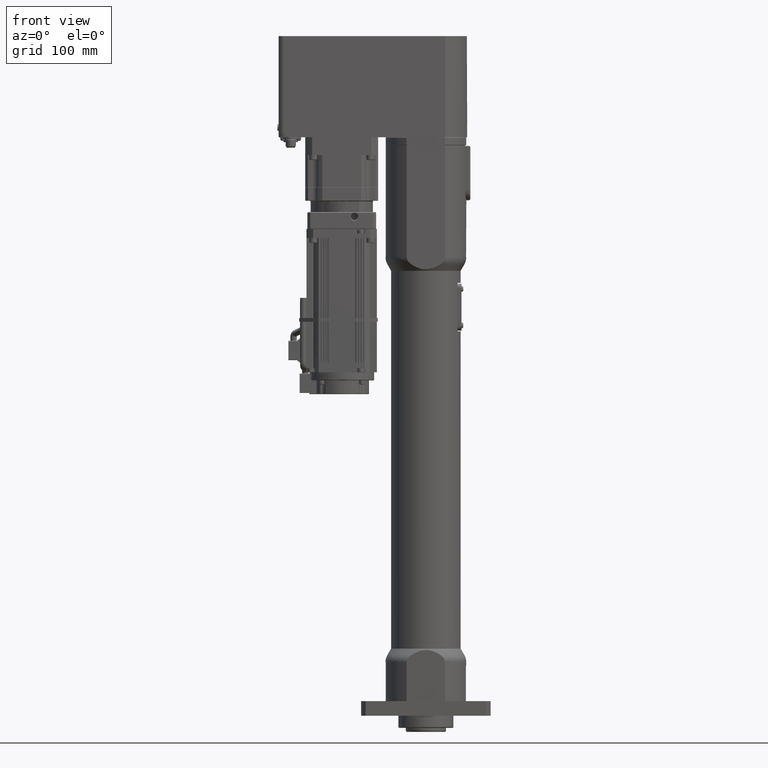
[diagram: clean part render]
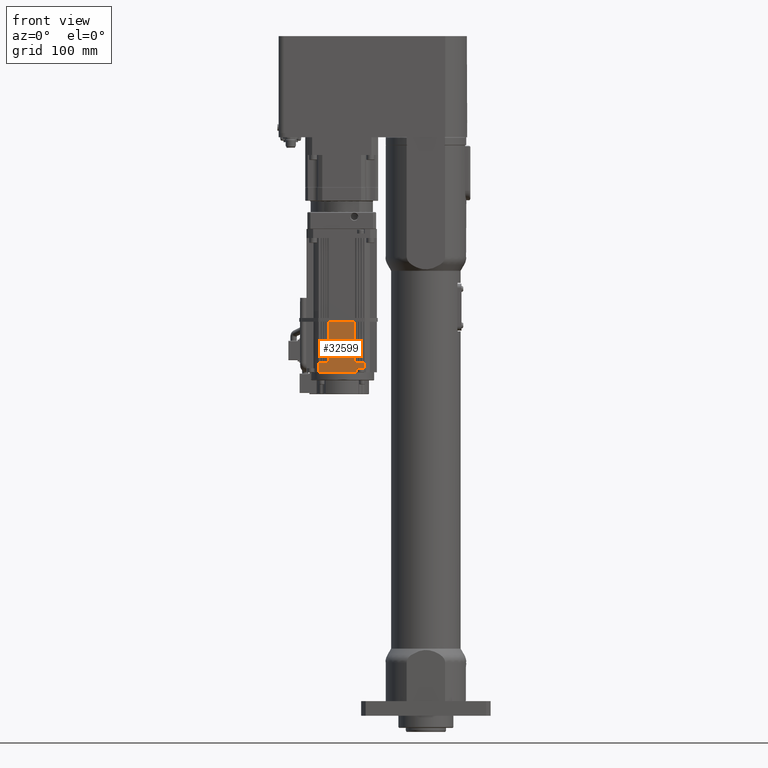
[diagram: same view with one face highlighted and labeled with its STEP entity id]
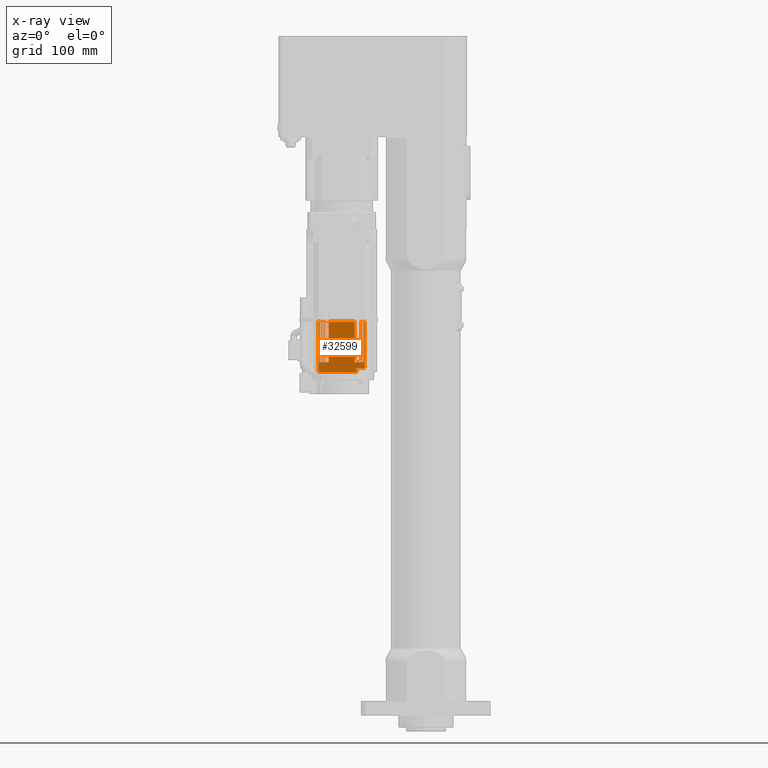
[diagram: x-ray of the same camera — body ghosted, the highlighted face saturated]
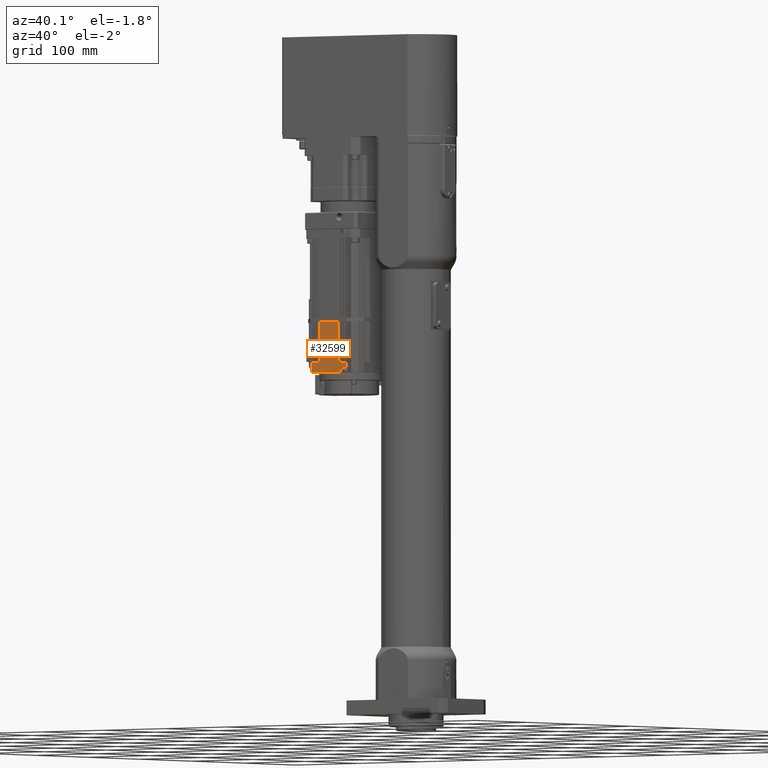
[diagram: same view with one face highlighted and labeled with its STEP entity id]
A machine part, front view. The second image highlights one B-rep face of the part: STEP entity #32599.
The next image is the same camera in x-ray: the body ghosted, the highlighted face saturated — about 0% of this face is hidden behind the body in this view.
A second angle (auxiliary view) of the same face is appended — the face is thin or edge-on in the first view.
In plain terms, the highlighted planar face has unit normal (-0, -1, 0).
Its self-contained STEP definition (entity closure, byte-faithful):
#747=PLANE('',#34666);
#2217=FACE_OUTER_BOUND('',#4040,.T.);
#4040=EDGE_LOOP('',(#21995,#21996,#21997,#21998,#21999,#22000,#22001,#22002,
#22003,#22004,#22005,#22006,#22007,#22008,#22009,#22010,#22011,#22012,#22013,
#22014,#22015,#22016,#22017,#22018,#22019,#22020,#22021,#22022,#22023,#22024,
#22025,#22026,#22027,#22028,#22029,#22030,#22031,#22032));
#7807=LINE('',#49138,#10503);
#7808=LINE('',#49139,#10504);
#7809=LINE('',#49140,#10505);
#7810=LINE('',#49141,#10506);
#7811=LINE('',#49142,#10507);
#7812=LINE('',#49143,#10508);
#7813=LINE('',#49144,#10509);
#7814=LINE('',#49145,#10510);
#7815=LINE('',#49147,#10511);
#7997=LINE('',#49474,#10693);
#7998=LINE('',#49477,#10694);
#7999=LINE('',#49479,#10695);
#8000=LINE('',#49480,#10696);
#8001=LINE('',#49482,#10697);
#8002=LINE('',#49484,#10698);
#8003=LINE('',#49486,#10699);
#8004=LINE('',#49487,#10700);
#8005=LINE('',#49489,#10701);
#8006=LINE('',#49491,#10702);
#8007=LINE('',#49492,#10703);
#8008=LINE('',#49494,#10704);
#8009=LINE('',#49496,#10705);
#8010=LINE('',#49497,#10706);
#8011=LINE('',#49499,#10707);
#8012=LINE('',#49501,#10708);
#8013=LINE('',#49502,#10709);
#8014=LINE('',#49504,#10710);
#8015=LINE('',#49506,#10711);
#8016=LINE('',#49507,#10712);
#8017=LINE('',#49509,#10713);
#8018=LINE('',#49511,#10714);
#8019=LINE('',#49512,#10715);
#8020=LINE('',#49514,#10716);
#8021=LINE('',#49516,#10717);
#8022=LINE('',#49517,#10718);
#8023=LINE('',#49519,#10719);
#8024=LINE('',#49521,#10720);
#8025=LINE('',#49522,#10721);
#10503=VECTOR('',#38853,10.);
#10504=VECTOR('',#38854,10.);
#10505=VECTOR('',#38855,10.);
#10506=VECTOR('',#38856,10.);
#10507=VECTOR('',#38857,10.);
#10508=VECTOR('',#38858,10.);
#10509=VECTOR('',#38859,10.);
#10510=VECTOR('',#38860,10.);
#10511=VECTOR('',#38861,10.);
#10693=VECTOR('',#39071,10.);
#10694=VECTOR('',#39074,10.);
#10695=VECTOR('',#39075,10.);
#10696=VECTOR('',#39076,10.);
#10697=VECTOR('',#39077,10.);
#10698=VECTOR('',#39078,10.);
#10699=VECTOR('',#39079,10.);
#10700=VECTOR('',#39080,10.);
#10701=VECTOR('',#39081,10.);
#10702=VECTOR('',#39082,10.);
#10703=VECTOR('',#39083,10.);
#10704=VECTOR('',#39084,10.);
#10705=VECTOR('',#39085,10.);
#10706=VECTOR('',#39086,10.);
#10707=VECTOR('',#39087,10.);
#10708=VECTOR('',#39088,10.);
#10709=VECTOR('',#39089,10.);
#10710=VECTOR('',#39090,10.);
#10711=VECTOR('',#39091,10.);
#10712=VECTOR('',#39092,10.);
#10713=VECTOR('',#39093,10.);
#10714=VECTOR('',#39094,10.);
#10715=VECTOR('',#39095,10.);
#10716=VECTOR('',#39096,10.);
#10717=VECTOR('',#39097,10.);
#10718=VECTOR('',#39098,10.);
#10719=VECTOR('',#39099,10.);
#10720=VECTOR('',#39100,10.);
#10721=VECTOR('',#39101,10.);
#13270=VERTEX_POINT('',#48970);
#13271=VERTEX_POINT('',#48972);
#13272=VERTEX_POINT('',#48976);
#13273=VERTEX_POINT('',#48978);
#13274=VERTEX_POINT('',#48982);
#13275=VERTEX_POINT('',#48984);
#13276=VERTEX_POINT('',#48988);
#13277=VERTEX_POINT('',#48990);
#13278=VERTEX_POINT('',#48994);
#13279=VERTEX_POINT('',#48996);
#13280=VERTEX_POINT('',#49000);
#13281=VERTEX_POINT('',#49002);
#13282=VERTEX_POINT('',#49006);
#13283=VERTEX_POINT('',#49008);
#13284=VERTEX_POINT('',#49012);
#13285=VERTEX_POINT('',#49014);
#13317=VERTEX_POINT('',#49136);
#13318=VERTEX_POINT('',#49146);
#13431=VERTEX_POINT('',#49472);
#13432=VERTEX_POINT('',#49476);
#13433=VERTEX_POINT('',#49478);
#13434=VERTEX_POINT('',#49481);
#13435=VERTEX_POINT('',#49483);
#13436=VERTEX_POINT('',#49485);
#13437=VERTEX_POINT('',#49488);
#13438=VERTEX_POINT('',#49490);
#13439=VERTEX_POINT('',#49493);
#13440=VERTEX_POINT('',#49495);
#13441=VERTEX_POINT('',#49498);
#13442=VERTEX_POINT('',#49500);
#13443=VERTEX_POINT('',#49503);
#13444=VERTEX_POINT('',#49505);
#13445=VERTEX_POINT('',#49508);
#13446=VERTEX_POINT('',#49510);
#13447=VERTEX_POINT('',#49513);
#13448=VERTEX_POINT('',#49515);
#13449=VERTEX_POINT('',#49518);
#13450=VERTEX_POINT('',#49520);
#16562=EDGE_CURVE('',#13285,#13317,#7807,.T.);
#16563=EDGE_CURVE('',#13282,#13284,#7808,.T.);
#16564=EDGE_CURVE('',#13280,#13283,#7809,.T.);
#16565=EDGE_CURVE('',#13278,#13281,#7810,.T.);
#16566=EDGE_CURVE('',#13276,#13279,#7811,.T.);
#16567=EDGE_CURVE('',#13274,#13277,#7812,.T.);
#16568=EDGE_CURVE('',#13272,#13275,#7813,.T.);
#16569=EDGE_CURVE('',#13270,#13273,#7814,.T.);
#16570=EDGE_CURVE('',#13318,#13271,#7815,.T.);
#16759=EDGE_CURVE('',#13317,#13431,#7997,.T.);
#16760=EDGE_CURVE('',#13432,#13284,#7998,.T.);
#16761=EDGE_CURVE('',#13432,#13433,#7999,.T.);
#16762=EDGE_CURVE('',#13285,#13433,#8000,.T.);
#16763=EDGE_CURVE('',#13434,#13431,#8001,.T.);
#16764=EDGE_CURVE('',#13434,#13435,#8002,.T.);
#16765=EDGE_CURVE('',#13435,#13436,#8003,.T.);
#16766=EDGE_CURVE('',#13436,#13318,#8004,.T.);
#16767=EDGE_CURVE('',#13437,#13271,#8005,.T.);
#16768=EDGE_CURVE('',#13437,#13438,#8006,.T.);
#16769=EDGE_CURVE('',#13270,#13438,#8007,.T.);
#16770=EDGE_CURVE('',#13439,#13273,#8008,.T.);
#16771=EDGE_CURVE('',#13439,#13440,#8009,.T.);
#16772=EDGE_CURVE('',#13272,#13440,#8010,.T.);
#16773=EDGE_CURVE('',#13441,#13275,#8011,.T.);
#16774=EDGE_CURVE('',#13441,#13442,#8012,.T.);
#16775=EDGE_CURVE('',#13274,#13442,#8013,.T.);
#16776=EDGE_CURVE('',#13443,#13277,#8014,.T.);
#16777=EDGE_CURVE('',#13443,#13444,#8015,.T.);
#16778=EDGE_CURVE('',#13276,#13444,#8016,.T.);
#16779=EDGE_CURVE('',#13445,#13279,#8017,.T.);
#16780=EDGE_CURVE('',#13445,#13446,#8018,.T.);
#16781=EDGE_CURVE('',#13278,#13446,#8019,.T.);
#16782=EDGE_CURVE('',#13447,#13281,#8020,.T.);
#16783=EDGE_CURVE('',#13447,#13448,#8021,.T.);
#16784=EDGE_CURVE('',#13280,#13448,#8022,.T.);
#16785=EDGE_CURVE('',#13449,#13283,#8023,.T.);
#16786=EDGE_CURVE('',#13449,#13450,#8024,.T.);
#16787=EDGE_CURVE('',#13282,#13450,#8025,.T.);
#21995=ORIENTED_EDGE('',*,*,#16563,.T.);
#21996=ORIENTED_EDGE('',*,*,#16760,.F.);
#21997=ORIENTED_EDGE('',*,*,#16761,.T.);
#21998=ORIENTED_EDGE('',*,*,#16762,.F.);
#21999=ORIENTED_EDGE('',*,*,#16562,.T.);
#22000=ORIENTED_EDGE('',*,*,#16759,.T.);
#22001=ORIENTED_EDGE('',*,*,#16763,.F.);
#22002=ORIENTED_EDGE('',*,*,#16764,.T.);
#22003=ORIENTED_EDGE('',*,*,#16765,.T.);
#22004=ORIENTED_EDGE('',*,*,#16766,.T.);
#22005=ORIENTED_EDGE('',*,*,#16570,.T.);
#22006=ORIENTED_EDGE('',*,*,#16767,.F.);
#22007=ORIENTED_EDGE('',*,*,#16768,.T.);
#22008=ORIENTED_EDGE('',*,*,#16769,.F.);
#22009=ORIENTED_EDGE('',*,*,#16569,.T.);
#22010=ORIENTED_EDGE('',*,*,#16770,.F.);
#22011=ORIENTED_EDGE('',*,*,#16771,.T.);
#22012=ORIENTED_EDGE('',*,*,#16772,.F.);
#22013=ORIENTED_EDGE('',*,*,#16568,.T.);
#22014=ORIENTED_EDGE('',*,*,#16773,.F.);
#22015=ORIENTED_EDGE('',*,*,#16774,.T.);
#22016=ORIENTED_EDGE('',*,*,#16775,.F.);
#22017=ORIENTED_EDGE('',*,*,#16567,.T.);
#22018=ORIENTED_EDGE('',*,*,#16776,.F.);
#22019=ORIENTED_EDGE('',*,*,#16777,.T.);
#22020=ORIENTED_EDGE('',*,*,#16778,.F.);
#22021=ORIENTED_EDGE('',*,*,#16566,.T.);
#22022=ORIENTED_EDGE('',*,*,#16779,.F.);
#22023=ORIENTED_EDGE('',*,*,#16780,.T.);
#22024=ORIENTED_EDGE('',*,*,#16781,.F.);
#22025=ORIENTED_EDGE('',*,*,#16565,.T.);
#22026=ORIENTED_EDGE('',*,*,#16782,.F.);
#22027=ORIENTED_EDGE('',*,*,#16783,.T.);
#22028=ORIENTED_EDGE('',*,*,#16784,.F.);
#22029=ORIENTED_EDGE('',*,*,#16564,.T.);
#22030=ORIENTED_EDGE('',*,*,#16785,.F.);
#22031=ORIENTED_EDGE('',*,*,#16786,.T.);
#22032=ORIENTED_EDGE('',*,*,#16787,.F.);
#32599=ADVANCED_FACE('',(#2217),#747,.T.);
#34666=AXIS2_PLACEMENT_3D('',#49475,#39072,#39073);
#38853=DIRECTION('',(-1.,2.39794757605666E-14,5.4831952850511E-14));
#38854=DIRECTION('',(-1.,2.39794757605666E-14,5.4831952850511E-14));
#38855=DIRECTION('',(-1.,2.39794757605666E-14,5.4831952850511E-14));
#38856=DIRECTION('',(-1.,2.39794757605666E-14,5.4831952850511E-14));
#38857=DIRECTION('',(-1.,2.39794757605666E-14,5.4831952850511E-14));
#38858=DIRECTION('',(-1.,2.39794757605666E-14,5.4831952850511E-14));
#38859=DIRECTION('',(-1.,2.39794757605666E-14,5.4831952850511E-14));
#38860=DIRECTION('',(-1.,2.39794757605666E-14,5.4831952850511E-14));
#38861=DIRECTION('',(-1.,2.39794757605666E-14,5.4831952850511E-14));
#39071=DIRECTION('',(-5.48319528505112E-14,-1.00722983923794E-14,-1.));
#39072=DIRECTION('center_axis',(-2.39794757605661E-14,-1.,1.00722983923807E-14));
#39073=DIRECTION('ref_axis',(-1.,2.39794757605666E-14,5.4831952850511E-14));
#39074=DIRECTION('',(5.58543918212096E-14,1.00722983923794E-14,1.));
#39075=DIRECTION('',(-1.,2.39794757605666E-14,5.58543918212094E-14));
#39076=DIRECTION('',(-5.56813700511382E-14,-1.00722983923794E-14,-1.));
#39077=DIRECTION('',(-1.,2.39794757605666E-14,5.4831952850511E-14));
#39078=DIRECTION('',(5.48319528505112E-14,1.00722983923794E-14,1.));
#39079=DIRECTION('',(1.,-2.39794757605666E-14,-5.4831952850511E-14));
#39080=DIRECTION('',(5.48319528505112E-14,1.00722983923794E-14,1.));
#39081=DIRECTION('',(5.58111363786918E-14,1.00722983923794E-14,1.));
#39082=DIRECTION('',(-1.,2.39794757605666E-14,5.58543918212094E-14));
#39083=DIRECTION('',(-5.57967178978525E-14,-1.00722983923794E-14,-1.));
#39084=DIRECTION('',(5.58976472637275E-14,1.00722983923794E-14,1.));
#39085=DIRECTION('',(-1.,2.39794757605666E-14,5.58543918212094E-14));
#39086=DIRECTION('',(-5.5825554859531E-14,-1.00722983923794E-14,-1.));
#39087=DIRECTION('',(5.62581092847097E-14,1.00722983923794E-14,1.));
#39088=DIRECTION('',(-1.,2.39794757605666E-14,5.58543918212094E-14));
#39089=DIRECTION('',(-5.62292723230311E-14,-1.00722983923794E-14,-1.));
#39090=DIRECTION('',(5.61139244763168E-14,1.00722983923794E-14,1.));
#39091=DIRECTION('',(-1.,2.39794757605666E-14,5.58543918212094E-14));
#39092=DIRECTION('',(-5.59697396679239E-14,-1.00722983923794E-14,-1.));
#39093=DIRECTION('',(5.57967178978525E-14,1.00722983923794E-14,1.));
#39094=DIRECTION('',(-1.,2.39794757605666E-14,5.58543918212094E-14));
#39095=DIRECTION('',(-5.57390439744953E-14,-1.00722983923794E-14,-1.));
#39096=DIRECTION('',(5.53353265109953E-14,1.00722983923794E-14,1.));
#39097=DIRECTION('',(-1.,2.39794757605666E-14,5.58543918212094E-14));
#39098=DIRECTION('',(-5.53353265109953E-14,-1.00722983923794E-14,-1.));
#39099=DIRECTION('',(5.57967178978525E-14,1.00722983923794E-14,1.));
#39100=DIRECTION('',(-1.,2.39794757605666E-14,5.58543918212094E-14));
#39101=DIRECTION('',(-5.57967178978525E-14,-1.00722983923794E-14,-1.));
#48970=CARTESIAN_POINT('',(-79.0969330410399,-43.5000000000241,487.000000000003));
#48972=CARTESIAN_POINT('',(-76.3969330410399,-43.5000000000242,487.000000000003));
#48976=CARTESIAN_POINT('',(-82.0969330410399,-43.5000000000241,487.000000000003));
#48978=CARTESIAN_POINT('',(-79.3969330410399,-43.5000000000241,487.000000000003));
#48982=CARTESIAN_POINT('',(-85.0969330410399,-43.500000000024,487.000000000003));
#48984=CARTESIAN_POINT('',(-82.3969330410399,-43.500000000024,487.000000000003));
#48988=CARTESIAN_POINT('',(-88.0969330410398,-43.5000000000239,487.000000000003));
#48990=CARTESIAN_POINT('',(-85.3969330410399,-43.500000000024,487.000000000003));
#48994=CARTESIAN_POINT('',(-122.59693304104,-43.5000000000231,487.000000000005));
#48996=CARTESIAN_POINT('',(-119.89693304104,-43.5000000000231,487.000000000005));
#49000=CARTESIAN_POINT('',(-125.59693304104,-43.500000000023,487.000000000005));
#49002=CARTESIAN_POINT('',(-122.89693304104,-43.5000000000231,487.000000000005));
#49006=CARTESIAN_POINT('',(-128.59693304104,-43.500000000023,487.000000000006));
#49008=CARTESIAN_POINT('',(-125.89693304104,-43.500000000023,487.000000000006));
#49012=CARTESIAN_POINT('',(-128.89693304104,-43.5000000000229,487.000000000006));
#49014=CARTESIAN_POINT('',(-131.59693304104,-43.5000000000229,487.000000000006));
#49136=CARTESIAN_POINT('',(-132.49693304104,-43.5000000000229,487.000000000006));
#49138=CARTESIAN_POINT('',(-88.3635130664575,-43.5000000000239,487.000000000003));
#49139=CARTESIAN_POINT('',(-88.3635130664575,-43.5000000000239,487.000000000003));
#49140=CARTESIAN_POINT('',(-88.3635130664575,-43.5000000000239,487.000000000003));
#49141=CARTESIAN_POINT('',(-88.3635130664575,-43.5000000000239,487.000000000003));
#49142=CARTESIAN_POINT('',(-88.3635130664575,-43.5000000000239,487.000000000003));
#49143=CARTESIAN_POINT('',(-88.3635130664575,-43.5000000000239,487.000000000003));
#49144=CARTESIAN_POINT('',(-88.3635130664575,-43.5000000000239,487.000000000003));
#49145=CARTESIAN_POINT('',(-88.3635130664575,-43.5000000000239,487.000000000003));
#49146=CARTESIAN_POINT('',(-75.4969330410398,-43.5000000000242,487.000000000003));
#49147=CARTESIAN_POINT('',(-88.3635130664575,-43.5000000000239,487.000000000003));
#49472=CARTESIAN_POINT('',(-132.496933041043,-43.5000000000235,424.500000000006));
#49474=CARTESIAN_POINT('',(-132.496933041038,-43.5000000000226,513.000000000006));
#49475=CARTESIAN_POINT('Origin',(-68.7300930918688,-43.5000000000232,601.500000000002));
#49476=CARTESIAN_POINT('',(-128.896933041043,-43.5000000000234,436.500000000006));
#49477=CARTESIAN_POINT('',(-128.896933041034,-43.5000000000218,596.000000000006));
#49478=CARTESIAN_POINT('',(-131.596933041043,-43.5000000000234,436.500000000006));
#49479=CARTESIAN_POINT('',(-99.1135130664604,-43.5000000000242,436.500000000004));
#49480=CARTESIAN_POINT('',(-131.596933041038,-43.5000000000225,519.000000000006));
#49481=CARTESIAN_POINT('',(-85.4969330410432,-43.5000000000246,424.500000000003));
#49482=CARTESIAN_POINT('',(-68.7300930918785,-43.500000000025,424.500000000002));
#49483=CARTESIAN_POINT('',(-85.4969330410429,-43.5000000000246,429.500000000003));
#49484=CARTESIAN_POINT('',(-85.4969330410383,-43.5000000000237,513.000000000003));
#49485=CARTESIAN_POINT('',(-75.4969330410429,-43.5000000000248,429.500000000003));
#49486=CARTESIAN_POINT('',(-74.2270634726738,-43.5000000000248,429.500000000003));
#49487=CARTESIAN_POINT('',(-75.4969330410383,-43.500000000024,513.000000000003));
#49488=CARTESIAN_POINT('',(-76.3969330410427,-43.5000000000247,436.500000000003));
#49489=CARTESIAN_POINT('',(-76.3969330410338,-43.5000000000231,596.000000000003));
#49490=CARTESIAN_POINT('',(-79.0969330410427,-43.5000000000246,436.500000000003));
#49491=CARTESIAN_POINT('',(-72.8635130664603,-43.5000000000248,436.500000000003));
#49492=CARTESIAN_POINT('',(-79.0969330410381,-43.5000000000238,519.000000000003));
#49493=CARTESIAN_POINT('',(-79.3969330410427,-43.5000000000246,436.500000000003));
#49494=CARTESIAN_POINT('',(-79.3969330410338,-43.500000000023,596.000000000003));
#49495=CARTESIAN_POINT('',(-82.0969330410427,-43.5000000000246,436.500000000003));
#49496=CARTESIAN_POINT('',(-74.3635130664603,-43.5000000000247,436.500000000003));
#49497=CARTESIAN_POINT('',(-82.0969330410381,-43.5000000000237,519.000000000003));
#49498=CARTESIAN_POINT('',(-82.3969330410427,-43.5000000000246,436.500000000003));
#49499=CARTESIAN_POINT('',(-82.3969330410337,-43.500000000023,596.000000000003));
#49500=CARTESIAN_POINT('',(-85.0969330410427,-43.5000000000245,436.500000000003));
#49501=CARTESIAN_POINT('',(-75.8635130664604,-43.5000000000247,436.500000000003));
#49502=CARTESIAN_POINT('',(-85.0969330410381,-43.5000000000237,519.000000000003));
#49503=CARTESIAN_POINT('',(-85.3969330410427,-43.5000000000245,436.500000000003));
#49504=CARTESIAN_POINT('',(-85.3969330410337,-43.5000000000229,596.000000000003));
#49505=CARTESIAN_POINT('',(-88.0969330410427,-43.5000000000244,436.500000000003));
#49506=CARTESIAN_POINT('',(-77.3635130664604,-43.5000000000247,436.500000000003));
#49507=CARTESIAN_POINT('',(-88.096933041038,-43.5000000000236,519.000000000003));
#49508=CARTESIAN_POINT('',(-119.896933041043,-43.5000000000237,436.500000000005));
#49509=CARTESIAN_POINT('',(-119.896933041034,-43.500000000022,596.000000000005));
#49510=CARTESIAN_POINT('',(-122.596933041043,-43.5000000000236,436.500000000005));
#49511=CARTESIAN_POINT('',(-94.6135130664604,-43.5000000000243,436.500000000004));
#49512=CARTESIAN_POINT('',(-122.596933041038,-43.5000000000228,519.000000000005));
#49513=CARTESIAN_POINT('',(-122.896933041043,-43.5000000000236,436.500000000005));
#49514=CARTESIAN_POINT('',(-122.896933041034,-43.500000000022,596.000000000005));
#49515=CARTESIAN_POINT('',(-125.596933041043,-43.5000000000235,436.500000000006));
#49516=CARTESIAN_POINT('',(-96.1135130664603,-43.5000000000242,436.500000000004));
#49517=CARTESIAN_POINT('',(-125.596933041038,-43.5000000000227,519.000000000005));
#49518=CARTESIAN_POINT('',(-125.896933041043,-43.5000000000235,436.500000000006));
#49519=CARTESIAN_POINT('',(-125.896933041034,-43.5000000000219,596.000000000005));
#49520=CARTESIAN_POINT('',(-128.596933041043,-43.5000000000235,436.500000000006));
#49521=CARTESIAN_POINT('',(-97.6135130664604,-43.5000000000242,436.500000000004));
#49522=CARTESIAN_POINT('',(-128.596933041038,-43.5000000000226,519.000000000006));